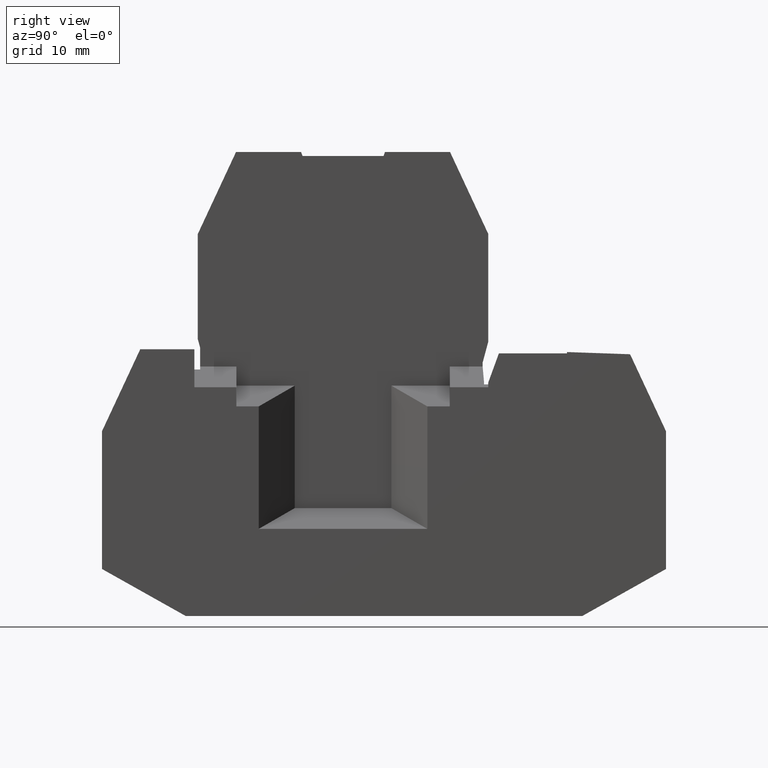
[diagram: clean part render]
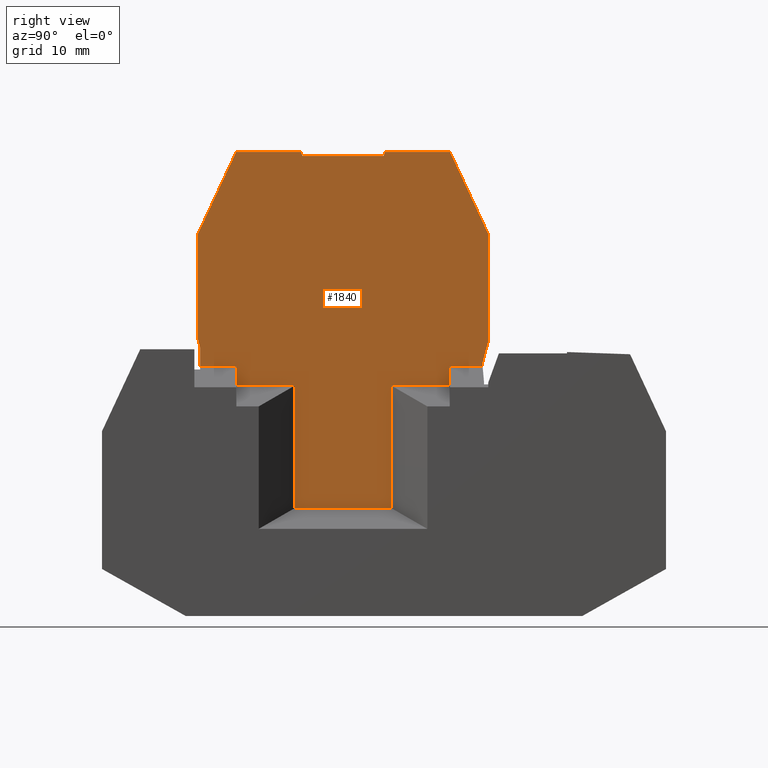
[diagram: same view with one face highlighted and labeled with its STEP entity id]
A machine part, right view. The second image highlights one B-rep face of the part: STEP entity #1840.
In plain terms, the highlighted planar face has unit normal (1, -0, -0).
Its self-contained STEP definition (entity closure, byte-faithful):
#10=CARTESIAN_POINT('',(-24.3742499044874,10.4309793427248,
15.5000000000049));
#20=DIRECTION('',(6.0214504997509E-74,-7.79044123907985E-31,1.));
#30=DIRECTION('',(1.,7.72928042836005E-44,0.));
#40=AXIS2_PLACEMENT_3D('',#10,#20,#30);
#50=PLANE('',#40);
#60=CARTESIAN_POINT('',(-12.6172159999996,-7.48284027607914,
15.5000000000049));
#70=DIRECTION('',(-1.,-1.26488620450717E-12,-3.15544362088405E-30));
#80=VECTOR('',#70,1.);
#90=LINE('',#60,#80);
#100=CARTESIAN_POINT('',(6.77801125168178,-7.48284027605461,
15.5000000000049));
#110=VERTEX_POINT('',#100);
#120=CARTESIAN_POINT('',(2.70415724422332,-7.48284027605976,
15.5000000000049));
#130=VERTEX_POINT('',#120);
#140=EDGE_CURVE('',#110,#130,#90,.T.);
#150=ORIENTED_EDGE('',*,*,#140,.F.);
#160=CARTESIAN_POINT('',(2.70415724421983,9.83366000003753,
15.5000000000049));
#170=DIRECTION('',(2.0139445666698E-13,-1.,1.68297490734174E-29));
#180=VECTOR('',#170,1.);
#190=LINE('',#160,#180);
#200=CARTESIAN_POINT('',(2.7041572442238,-9.8507333902381,
15.5000000000049));
#210=VERTEX_POINT('',#200);
#220=EDGE_CURVE('',#130,#210,#190,.T.);
#230=ORIENTED_EDGE('',*,*,#220,.F.);
#240=CARTESIAN_POINT('',(-12.6172159999996,-9.85073339025749,
15.5000000000049));
#250=DIRECTION('',(1.,1.26492327806076E-12,3.15544362088405E-30));
#260=VECTOR('',#250,1.);
#270=LINE('',#240,#260);
#280=CARTESIAN_POINT('',(-4.5361631088467,-9.85073339024726,
15.5000000000049));
#290=VERTEX_POINT('',#280);
#300=EDGE_CURVE('',#290,#210,#270,.T.);
#310=ORIENTED_EDGE('',*,*,#300,.T.);
#320=CARTESIAN_POINT('',(-4.53616310884994,9.83366000003753,
15.5000000000049));
#330=DIRECTION('',(-1.64369946956923E-13,1.,-7.01935627136523E-30));
#340=VECTOR('',#330,1.);
#350=LINE('',#320,#340);
#360=CARTESIAN_POINT('',(-4.53616310884421,-25.0257319820079,
15.5000000000049));
#370=VERTEX_POINT('',#360);
#380=EDGE_CURVE('',#370,#290,#350,.T.);
#390=ORIENTED_EDGE('',*,*,#380,.T.);
#400=CARTESIAN_POINT('',(-12.6172159999996,-25.0257319820181,
15.5000000000049));
#410=DIRECTION('',(-1.,-1.26501349196398E-12,-3.15544362088405E-29));
#420=VECTOR('',#410,1.);
#430=LINE('',#400,#420);
#440=CARTESIAN_POINT('',(-16.505519948176,-25.025731982023,
15.5000000000049));
#450=VERTEX_POINT('',#440);
#460=EDGE_CURVE('',#370,#450,#430,.T.);
#470=ORIENTED_EDGE('',*,*,#460,.F.);
#480=CARTESIAN_POINT('',(-16.5055199481843,9.83366000003753,
15.5000000000049));
#490=DIRECTION('',(-2.38220729117235E-13,1.,-6.27738547649573E-30));
#500=VECTOR('',#490,1.);
#510=LINE('',#480,#500);
#520=CARTESIAN_POINT('',(-16.5055199481804,-9.8507333902624,
15.5000000000049));
#530=VERTEX_POINT('',#520);
#540=EDGE_CURVE('',#450,#530,#510,.T.);
#550=ORIENTED_EDGE('',*,*,#540,.F.);
#560=CARTESIAN_POINT('',(-12.6172159999996,-9.85073339025749,
15.5000000000049));
#570=DIRECTION('',(1.,1.26492327806076E-12,3.15544362088405E-30));
#580=VECTOR('',#570,1.);
#590=LINE('',#560,#580);
#600=CARTESIAN_POINT('',(-23.7458403011824,-9.85073339027156,
15.5000000000049));
#610=VERTEX_POINT('',#600);
#620=EDGE_CURVE('',#610,#530,#590,.T.);
#630=ORIENTED_EDGE('',*,*,#620,.T.);
#640=CARTESIAN_POINT('',(-23.7458403011863,9.83366000003753,
15.5000000000049));
#650=DIRECTION('',(-2.01443522056318E-13,1.,-1.56217118573151E-29));
#660=VECTOR('',#650,1.);
#670=LINE('',#640,#660);
#680=CARTESIAN_POINT('',(-23.7458403011829,-7.48284027609321,
15.5000000000049));
#690=VERTEX_POINT('',#680);
#700=EDGE_CURVE('',#610,#690,#670,.T.);
#710=ORIENTED_EDGE('',*,*,#700,.F.);
#720=CARTESIAN_POINT('',(-12.6172159999996,-7.48284027607913,
15.5000000000049));
#730=DIRECTION('',(-1.,-1.26488620450717E-12,-3.15544362088405E-30));
#740=VECTOR('',#730,1.);
#750=LINE('',#720,#740);
#760=CARTESIAN_POINT('',(-28.2322051267677,-7.48284027609888,
15.5000000000049));
#770=VERTEX_POINT('',#760);
#780=EDGE_CURVE('',#690,#770,#750,.T.);
#790=ORIENTED_EDGE('',*,*,#780,.F.);
#800=CARTESIAN_POINT('',(-28.2322051267669,9.83366000003753,
15.5000000000049));
#810=DIRECTION('',(-4.17933676182971E-14,-1.,-3.61608170207377E-30));
#820=VECTOR('',#810,1.);
#830=LINE('',#800,#820);
#840=CARTESIAN_POINT('',(-28.2322051267676,-5.1499983151742,
15.5000000000049));
#850=VERTEX_POINT('',#840);
#860=EDGE_CURVE('',#850,#770,#830,.T.);
#870=ORIENTED_EDGE('',*,*,#860,.T.);
#880=CARTESIAN_POINT('',(-32.2470642719923,9.83366000003753,
15.5000000000049));
#890=DIRECTION('',(-0.258819045102512,0.965925826289071,
-1.14078331354471E-17));
#900=VECTOR('',#890,1.);
#910=LINE('',#880,#900);
#920=CARTESIAN_POINT('',(-28.5208398581476,-4.0727988328349,
15.5000000000049));
#930=VERTEX_POINT('',#920);
#940=EDGE_CURVE('',#850,#930,#910,.T.);
#950=ORIENTED_EDGE('',*,*,#940,.F.);
#960=CARTESIAN_POINT('',(-28.520839858147,9.83366000003753,
15.5000000000049));
#970=DIRECTION('',(-4.27297086603087E-14,-1.,-5.80601097978839E-30));
#980=VECTOR('',#970,1.);
#990=LINE('',#960,#980);
#1000=CARTESIAN_POINT('',(-28.520839858147,8.93443762974329,
15.5000000000049));
#1010=VERTEX_POINT('',#1000);
#1020=EDGE_CURVE('',#1010,#930,#990,.T.);
#1030=ORIENTED_EDGE('',*,*,#1020,.T.);
#1040=CARTESIAN_POINT('',(-28.1015255804946,9.83366000003753,
15.5000000000049));
#1050=DIRECTION('',(-0.422618261740633,-0.906307787036681,
-3.07157596857602E-18));
#1060=VECTOR('',#1050,1.);
#1070=LINE('',#1040,#1060);
#1080=CARTESIAN_POINT('',(-23.7805602896656,19.0999999695038,
15.5000000000049));
#1090=VERTEX_POINT('',#1080);
#1100=EDGE_CURVE('',#1090,#1010,#1070,.T.);
#1110=ORIENTED_EDGE('',*,*,#1100,.T.);
#1120=CARTESIAN_POINT('',(-12.6172159999996,19.0999999695038,
15.5000000000049));
#1130=DIRECTION('',(-1.,-1.62505346475527E-28,0.));
#1140=VECTOR('',#1130,1.);
#1150=LINE('',#1120,#1140);
#1160=CARTESIAN_POINT('',(-15.7208410459889,19.0999999695038,
15.5000000000049));
#1170=VERTEX_POINT('',#1160);
#1180=EDGE_CURVE('',#1170,#1090,#1150,.T.);
#1190=ORIENTED_EDGE('',*,*,#1180,.T.);
#1200=CARTESIAN_POINT('',(-12.348169116512,9.83366000003753,
15.5000000000049));
#1210=DIRECTION('',(0.342020143325669,-0.939692620785908,
1.68291310631298E-17));
#1220=VECTOR('',#1210,1.);
#1230=LINE('',#1200,#1220);
#1240=CARTESIAN_POINT('',(-15.538855945744,18.6000000159038,
15.5000000000049));
#1250=VERTEX_POINT('',#1240);
#1260=EDGE_CURVE('',#1170,#1250,#1230,.T.);
#1270=ORIENTED_EDGE('',*,*,#1260,.F.);
#1280=CARTESIAN_POINT('',(-12.6172159999996,18.6000000159038,
15.5000000000049));
#1290=DIRECTION('',(1.,1.62505346475527E-28,0.));
#1300=VECTOR('',#1290,1.);
#1310=LINE('',#1280,#1300);
#1320=CARTESIAN_POINT('',(-5.5028271113538,18.6000000159038,
15.5000000000049));
#1330=VERTEX_POINT('',#1320);
#1340=EDGE_CURVE('',#1250,#1330,#1310,.T.);
#1350=ORIENTED_EDGE('',*,*,#1340,.F.);
#1360=CARTESIAN_POINT('',(-8.69351394058584,9.83366000003753,
15.5000000000049));
#1370=DIRECTION('',(-0.342020143325669,-0.939692620785908,
-1.6829131063267E-17));
#1380=VECTOR('',#1370,1.);
#1390=LINE('',#1360,#1380);
#1400=CARTESIAN_POINT('',(-5.3208420111089,19.0999999695039,
15.5000000000049));
#1410=VERTEX_POINT('',#1400);
#1420=EDGE_CURVE('',#1410,#1330,#1390,.T.);
#1430=ORIENTED_EDGE('',*,*,#1420,.T.);
#1440=CARTESIAN_POINT('',(-12.6172159999996,19.0999999695039,
15.5000000000049));
#1450=DIRECTION('',(-1.,-2.60324098722932E-28,0.));
#1460=VECTOR('',#1450,1.);
#1470=LINE('',#1440,#1460);
#1480=CARTESIAN_POINT('',(2.73887723256764,19.0999999695039,
15.5000000000049));
#1490=VERTEX_POINT('',#1480);
#1500=EDGE_CURVE('',#1490,#1410,#1470,.T.);
#1510=ORIENTED_EDGE('',*,*,#1500,.T.);
#1520=CARTESIAN_POINT('',(7.05984252339591,9.83366000003753,
15.5000000000049));
#1530=DIRECTION('',(-0.422618261740567,0.906307787036712,
-3.07157597008275E-18));
#1540=VECTOR('',#1530,1.);
#1550=LINE('',#1520,#1540);
#1560=CARTESIAN_POINT('',(7.47915680104089,8.93443762975905,
15.5000000000049));
#1570=VERTEX_POINT('',#1560);
#1580=EDGE_CURVE('',#1570,#1490,#1550,.T.);
#1590=ORIENTED_EDGE('',*,*,#1580,.T.);
#1600=CARTESIAN_POINT('',(7.47915680104089,9.83366000003753,
15.5000000000049));
#1610=DIRECTION('',(-5.9492514403886E-28,1.,7.79044123907952E-31));
#1620=VECTOR('',#1610,1.);
#1630=LINE('',#1600,#1620);
#1640=CARTESIAN_POINT('',(7.47915680104089,-4.38568881802159,
15.5000000000049));
#1650=VERTEX_POINT('',#1640);
#1660=EDGE_CURVE('',#1650,#1570,#1630,.T.);
#1670=ORIENTED_EDGE('',*,*,#1660,.T.);
#1680=CARTESIAN_POINT('',(11.2970204599472,9.83366000003753,
15.5000000000049));
#1690=DIRECTION('',(0.259313336297714,0.965793245792364,
-7.62092904926695E-19));
#1700=VECTOR('',#1690,1.);
#1710=LINE('',#1680,#1700);
#1720=CARTESIAN_POINT('',(6.77801125168178,-6.99705388968528,
15.5000000000049));
#1730=VERTEX_POINT('',#1720);
#1740=EDGE_CURVE('',#1730,#1650,#1710,.T.);
#1750=ORIENTED_EDGE('',*,*,#1740,.T.);
#1760=CARTESIAN_POINT('',(6.77801125168169,9.83366000003753,
15.5000000000049));
#1770=DIRECTION('',(-4.97810613216556E-15,1.,2.82517979625615E-31));
#1780=VECTOR('',#1770,1.);
#1790=LINE('',#1760,#1780);
#1800=EDGE_CURVE('',#110,#1730,#1790,.T.);
#1810=ORIENTED_EDGE('',*,*,#1800,.T.);
#1820=EDGE_LOOP('',(#1810,#1750,#1670,#1590,#1510,#1430,#1350,#1270,
#1190,#1110,#1030,#950,#870,#790,#710,#630,#550,#470,#390,#310,#230,#150
));
#1830=FACE_OUTER_BOUND('',#1820,.T.);
#1840=ADVANCED_FACE('',(#1830),#50,.T.);